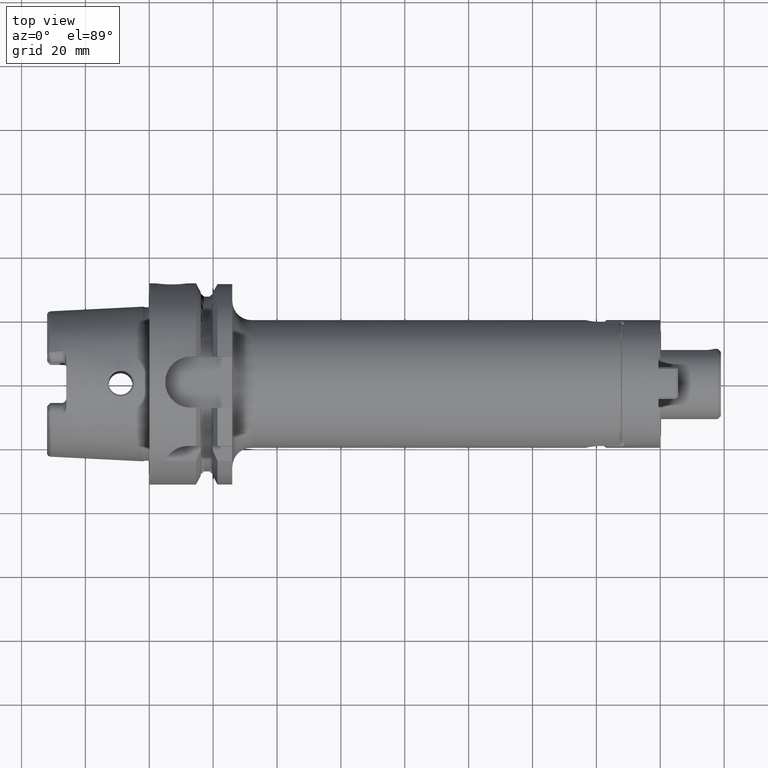
[diagram: clean part render]
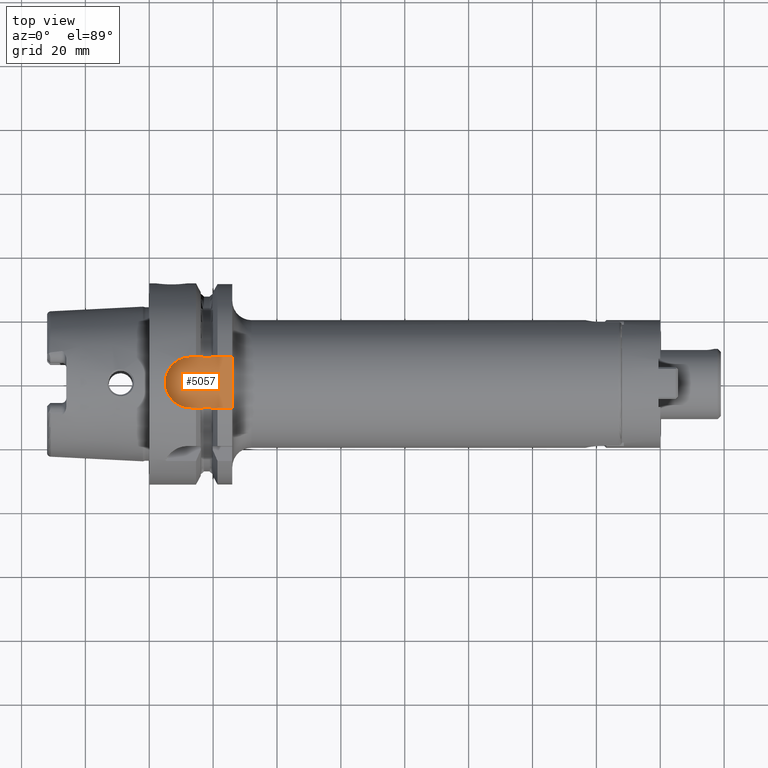
[diagram: same view with one face highlighted and labeled with its STEP entity id]
A machine part, top view. The second image highlights one B-rep face of the part: STEP entity #5057.
In plain terms, the highlighted planar face has unit normal (0, 0, 1).
Its self-contained STEP definition (entity closure, byte-faithful):
#1235=CARTESIAN_POINT('',(1.670911310946E1,8.0175E0,2.64E1));
#1236=CARTESIAN_POINT('',(1.673352951994E1,7.979074793464E0,2.64E1));
#1237=CARTESIAN_POINT('',(1.678346969240E1,7.908219856299E0,2.64E1));
#1238=CARTESIAN_POINT('',(1.686140323483E1,7.821166046425E0,2.64E1));
#1239=CARTESIAN_POINT('',(1.694700550698E1,7.751989508750E0,2.64E1));
#1240=CARTESIAN_POINT('',(1.703710106542E1,7.709022207033E0,2.64E1));
#1241=CARTESIAN_POINT('',(1.709569678300E1,7.7E0,2.64E1));
#1242=CARTESIAN_POINT('',(1.7125E1,7.7E0,2.64E1));
#1286=CARTESIAN_POINT('',(1.7125E1,-7.7E0,2.64E1));
#1287=CARTESIAN_POINT('',(1.709801542874E1,-7.7E0,2.64E1));
#1288=CARTESIAN_POINT('',(1.704428225575E1,-7.707480820281E0,2.64E1));
#1289=CARTESIAN_POINT('',(1.696015728326E1,-7.744711750978E0,2.64E1));
#1290=CARTESIAN_POINT('',(1.688520085667E1,-7.800550899081E0,2.64E1));
#1291=CARTESIAN_POINT('',(1.681986238020E1,-7.866117342831E0,2.64E1));
#1292=CARTESIAN_POINT('',(1.676061128616E1,-7.939936204551E0,2.64E1));
#1293=CARTESIAN_POINT('',(1.672578491309E1,-7.991262830607E0,2.64E1));
#1294=CARTESIAN_POINT('',(1.670911310946E1,-8.0175E0,2.64E1));
#1381=CARTESIAN_POINT('',(1.8875E1,7.7E0,2.64E1));
#1382=CARTESIAN_POINT('',(1.890430468861E1,7.7E0,2.64E1));
#1383=CARTESIAN_POINT('',(1.896290280766E1,7.708993215977E0,2.64E1));
#1384=CARTESIAN_POINT('',(1.905331742183E1,7.752198019553E0,2.64E1));
#1385=CARTESIAN_POINT('',(1.913860453300E1,7.821194226188E0,2.64E1));
#1386=CARTESIAN_POINT('',(1.921661446474E1,7.908317855978E0,2.64E1));
#1387=CARTESIAN_POINT('',(1.926649394598E1,7.979111722839E0,2.64E1));
#1388=CARTESIAN_POINT('',(1.929088689054E1,8.0175E0,2.64E1));
#1436=CARTESIAN_POINT('',(1.929088689054E1,-8.0175E0,2.64E1));
#1437=CARTESIAN_POINT('',(1.927417922618E1,-7.991206394948E0,2.64E1));
#1438=CARTESIAN_POINT('',(1.923922993687E1,-7.939709103662E0,2.64E1));
#1439=CARTESIAN_POINT('',(1.917963781936E1,-7.865495822527E0,2.64E1));
#1440=CARTESIAN_POINT('',(1.911354741171E1,-7.799456458601E0,2.64E1));
#1441=CARTESIAN_POINT('',(1.903907332419E1,-7.744292367168E0,2.64E1));
#1442=CARTESIAN_POINT('',(1.895500739860E1,-7.707298016794E0,2.64E1));
#1443=CARTESIAN_POINT('',(1.890171865616E1,-7.7E0,2.64E1));
#1444=CARTESIAN_POINT('',(1.8875E1,-7.7E0,2.64E1));
#1491=DIRECTION('',(1.E0,0.E0,0.E0));
#1492=VECTOR('',#1491,1.75E0);
#1493=CARTESIAN_POINT('',(1.7125E1,-7.7E0,2.64E1));
#1494=LINE('',#1493,#1492);
#1499=DIRECTION('',(1.E0,0.E0,0.E0));
#1500=VECTOR('',#1499,1.75E0);
#1501=CARTESIAN_POINT('',(1.7125E1,7.7E0,2.64E1));
#1502=LINE('',#1501,#1500);
#1508=DIRECTION('',(1.E0,0.E0,0.E0));
#1509=VECTOR('',#1508,3.741613109456E0);
#1510=CARTESIAN_POINT('',(1.29675E1,-8.0175E0,2.64E1));
#1511=LINE('',#1510,#1509);
#1512=CARTESIAN_POINT('',(1.29675E1,0.E0,2.64E1));
#1513=DIRECTION('',(0.E0,0.E0,1.E0));
#1514=DIRECTION('',(0.E0,1.E0,0.E0));
#1515=AXIS2_PLACEMENT_3D('',#1512,#1513,#1514);
#1517=DIRECTION('',(-1.E0,0.E0,0.E0));
#1518=VECTOR('',#1517,3.741613109456E0);
#1519=CARTESIAN_POINT('',(1.670911310946E1,8.0175E0,2.64E1));
#1520=LINE('',#1519,#1518);
#1525=DIRECTION('',(1.E0,0.E0,0.E0));
#1526=VECTOR('',#1525,6.709113109456E0);
#1527=CARTESIAN_POINT('',(1.929088689054E1,-8.0175E0,2.64E1));
#1528=LINE('',#1527,#1526);
#1561=DIRECTION('',(-1.E0,0.E0,0.E0));
#1562=VECTOR('',#1561,6.709113109456E0);
#1563=CARTESIAN_POINT('',(2.6E1,8.0175E0,2.64E1));
#1564=LINE('',#1563,#1562);
#1688=DIRECTION('',(0.E0,1.E0,0.E0));
#1689=VECTOR('',#1688,1.6035E1);
#1690=CARTESIAN_POINT('',(2.6E1,-8.0175E0,2.64E1));
#1691=LINE('',#1690,#1689);
#3237=CARTESIAN_POINT('',(1.29675E1,8.0175E0,2.64E1));
#3238=CARTESIAN_POINT('',(1.29675E1,-8.0175E0,2.64E1));
#3239=VERTEX_POINT('',#3237);
#3240=VERTEX_POINT('',#3238);
#3241=CARTESIAN_POINT('',(1.670911310946E1,-8.0175E0,2.64E1));
#3242=VERTEX_POINT('',#3241);
#3247=CARTESIAN_POINT('',(1.670911310946E1,8.0175E0,2.64E1));
#3248=VERTEX_POINT('',#3247);
#3295=CARTESIAN_POINT('',(1.929088689054E1,-8.0175E0,2.64E1));
#3296=CARTESIAN_POINT('',(2.6E1,-8.0175E0,2.64E1));
#3297=VERTEX_POINT('',#3295);
#3298=VERTEX_POINT('',#3296);
#3299=CARTESIAN_POINT('',(2.6E1,8.0175E0,2.64E1));
#3300=CARTESIAN_POINT('',(1.929088689054E1,8.0175E0,2.64E1));
#3301=VERTEX_POINT('',#3299);
#3302=VERTEX_POINT('',#3300);
#3315=VERTEX_POINT('',#1242);
#3316=VERTEX_POINT('',#1286);
#3317=CARTESIAN_POINT('',(1.8875E1,7.7E0,2.64E1));
#3318=VERTEX_POINT('',#3317);
#3319=CARTESIAN_POINT('',(1.8875E1,-7.7E0,2.64E1));
#3320=VERTEX_POINT('',#3319);
#5032=CARTESIAN_POINT('',(0.E0,0.E0,2.64E1));
#5033=DIRECTION('',(0.E0,0.E0,1.E0));
#5034=DIRECTION('',(1.E0,0.E0,0.E0));
#5035=AXIS2_PLACEMENT_3D('',#5032,#5033,#5034);
#5036=PLANE('',#5035);
#5038=ORIENTED_EDGE('',*,*,#5037,.F.);
#5040=ORIENTED_EDGE('',*,*,#5039,.F.);
#5042=ORIENTED_EDGE('',*,*,#5041,.F.);
#5043=ORIENTED_EDGE('',*,*,#4837,.T.);
#5044=ORIENTED_EDGE('',*,*,#5026,.T.);
#5045=ORIENTED_EDGE('',*,*,#4942,.T.);
#5047=ORIENTED_EDGE('',*,*,#5046,.F.);
#5049=ORIENTED_EDGE('',*,*,#5048,.F.);
#5051=ORIENTED_EDGE('',*,*,#5050,.F.);
#5052=ORIENTED_EDGE('',*,*,#4970,.T.);
#5053=ORIENTED_EDGE('',*,*,#5013,.F.);
#5054=ORIENTED_EDGE('',*,*,#4860,.T.);
#5055=EDGE_LOOP('',(#5038,#5040,#5042,#5043,#5044,#5045,#5047,#5049,#5051,#5052,
#5053,#5054));
#5056=FACE_OUTER_BOUND('',#5055,.F.);
#5057=ADVANCED_FACE('',(#5056),#5036,.T.);
#1243=B_SPLINE_CURVE_WITH_KNOTS('',3,(#1235,#1236,#1237,#1238,#1239,#1240,#1241,
#1242),.UNSPECIFIED.,.F.,.F.,(4,1,1,1,1,4),(0.E0,2.E-1,4.E-1,6.E-1,8.E-1,1.E0),
.UNSPECIFIED.);
#1295=B_SPLINE_CURVE_WITH_KNOTS('',3,(#1286,#1287,#1288,#1289,#1290,#1291,#1292,
#1293,#1294),.UNSPECIFIED.,.F.,.F.,(4,1,1,1,1,1,4),(0.E0,1.666666666667E-1,
3.333333333333E-1,5.E-1,6.666666666667E-1,8.333333333333E-1,1.E0),
.UNSPECIFIED.);
#1389=B_SPLINE_CURVE_WITH_KNOTS('',3,(#1381,#1382,#1383,#1384,#1385,#1386,#1387,
#1388),.UNSPECIFIED.,.F.,.F.,(4,1,1,1,1,4),(0.E0,2.E-1,4.E-1,6.E-1,8.E-1,1.E0),
.UNSPECIFIED.);
#1445=B_SPLINE_CURVE_WITH_KNOTS('',3,(#1436,#1437,#1438,#1439,#1440,#1441,#1442,
#1443,#1444),.UNSPECIFIED.,.F.,.F.,(4,1,1,1,1,1,4),(0.E0,1.666666666667E-1,
3.333333333333E-1,5.E-1,6.666666666667E-1,8.333333333333E-1,1.E0),
.UNSPECIFIED.);
#1516=CIRCLE('',#1515,8.0175E0);
#4837=EDGE_CURVE('',#3248,#3315,#1243,.T.);
#4860=EDGE_CURVE('',#3316,#3242,#1295,.T.);
#4942=EDGE_CURVE('',#3318,#3302,#1389,.T.);
#4970=EDGE_CURVE('',#3297,#3320,#1445,.T.);
#5013=EDGE_CURVE('',#3316,#3320,#1494,.T.);
#5026=EDGE_CURVE('',#3315,#3318,#1502,.T.);
#5037=EDGE_CURVE('',#3240,#3242,#1511,.T.);
#5039=EDGE_CURVE('',#3239,#3240,#1516,.T.);
#5041=EDGE_CURVE('',#3248,#3239,#1520,.T.);
#5046=EDGE_CURVE('',#3301,#3302,#1564,.T.);
#5048=EDGE_CURVE('',#3298,#3301,#1691,.T.);
#5050=EDGE_CURVE('',#3297,#3298,#1528,.T.);